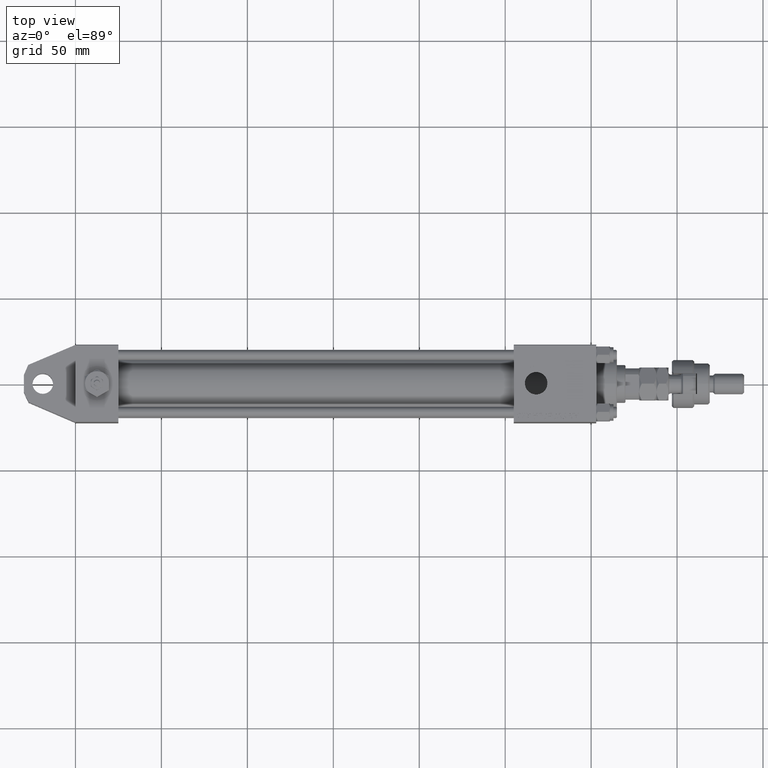
[diagram: clean part render]
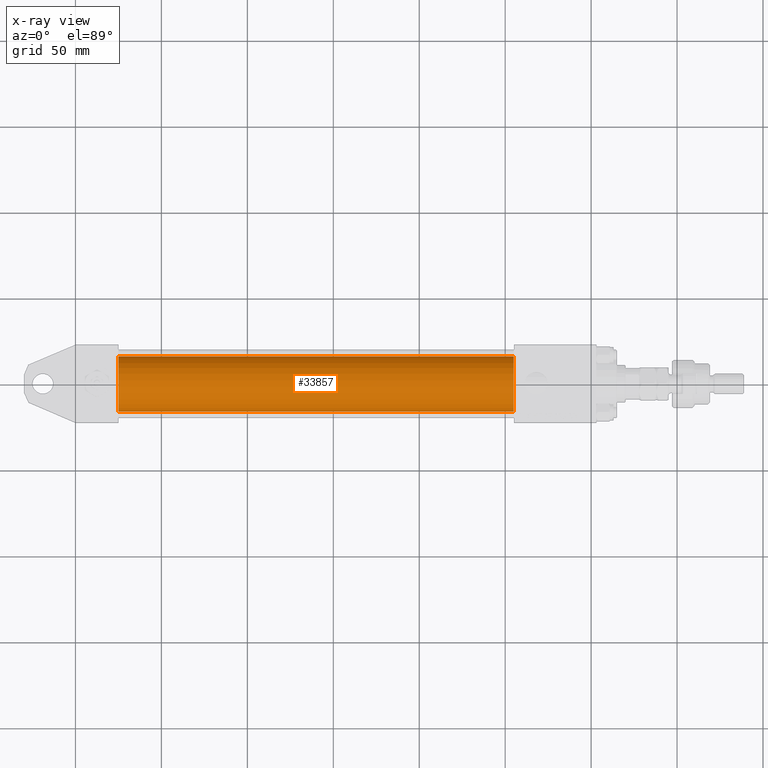
[diagram: x-ray — body ghosted, one internal face saturated and labeled with its STEP entity id]
A machine part, top view, then the same camera in x-ray: the body is ghosted and one INTERNAL B-rep face — a face not visible from any outside direction — is saturated and labeled: STEP entity #33857.
In plain terms, the highlighted cylindrical surface (edge-blend (fillet) strip) has radius 16 mm, axis along (-1, -0, 0).
Its self-contained STEP definition (entity closure, byte-faithful):
#2600 = CARTESIAN_POINT ( 'NONE',  ( 255.0000000000000000, -3.469446951953614189E-15, 16.00000000000000000 ) ) ;
#3638 = CARTESIAN_POINT ( 'NONE',  ( 25.00000000000000000, -3.469446951953614189E-15, 0.000000000000000000 ) ) ;
#5121 = CARTESIAN_POINT ( 'NONE',  ( 255.0000000000000000, -3.469446951953614189E-15, 0.000000000000000000 ) ) ;
#5684 = VERTEX_POINT ( 'NONE', #23177 ) ;
#5744 = VECTOR ( 'NONE', #32026, 1000.000000000000000 ) ;
#10834 = EDGE_CURVE ( 'NONE', #5684, #45684, #15193, .T. ) ;
#11106 = AXIS2_PLACEMENT_3D ( 'NONE', #34223, #42751, #47692 ) ;
#11721 = VERTEX_POINT ( 'NONE', #22994 ) ;
#11765 = EDGE_CURVE ( 'NONE', #22931, #11721, #45053, .T. ) ;
#14925 = CARTESIAN_POINT ( 'NONE',  ( 255.0000000000000000, -1.510012073317849255E-15, -16.00000000000000000 ) ) ;
#15193 = LINE ( 'NONE', #14925, #5744 ) ;
#16720 = ORIENTED_EDGE ( 'NONE', *, *, #53140, .F. ) ;
#20409 = CARTESIAN_POINT ( 'NONE',  ( 25.00000000000000000, -1.510012073317849255E-15, -16.00000000000000000 ) ) ;
#20563 = CIRCLE ( 'NONE', #35408, 16.00000000000000000 ) ;
#20793 = EDGE_LOOP ( 'NONE', ( #27630, #37013, #16720, #37546 ) ) ;
#22931 = VERTEX_POINT ( 'NONE', #52836 ) ;
#22994 = CARTESIAN_POINT ( 'NONE',  ( 25.00000000000000000, -3.469446951953614189E-15, 16.00000000000000000 ) ) ;
#23005 = DIRECTION ( 'NONE',  ( 1.000000000000000000, 0.000000000000000000, 0.000000000000000000 ) ) ;
#23177 = CARTESIAN_POINT ( 'NONE',  ( 255.0000000000000000, -1.510012073317849255E-15, -16.00000000000000000 ) ) ;
#27630 = ORIENTED_EDGE ( 'NONE', *, *, #51156, .T. ) ;
#30625 = CYLINDRICAL_SURFACE ( 'NONE', #11106, 16.00000000000000000 ) ;
#32026 = DIRECTION ( 'NONE',  ( -1.000000000000000000, -0.000000000000000000, -0.000000000000000000 ) ) ;
#32668 = DIRECTION ( 'NONE',  ( -1.000000000000000000, -0.000000000000000000, -0.000000000000000000 ) ) ;
#33857 = ADVANCED_FACE ( 'NONE', ( #43025 ), #30625, .F. ) ;
#34223 = CARTESIAN_POINT ( 'NONE',  ( 255.0000000000000000, -3.469446951953614189E-15, 0.000000000000000000 ) ) ;
#35408 = AXIS2_PLACEMENT_3D ( 'NONE', #3638, #38104, #41434 ) ;
#37013 = ORIENTED_EDGE ( 'NONE', *, *, #10834, .T. ) ;
#37546 = ORIENTED_EDGE ( 'NONE', *, *, #11765, .F. ) ;
#38104 = DIRECTION ( 'NONE',  ( 1.000000000000000000, 0.000000000000000000, 0.000000000000000000 ) ) ;
#41434 = DIRECTION ( 'NONE',  ( 0.000000000000000000, 0.000000000000000000, -1.000000000000000000 ) ) ;
#42751 = DIRECTION ( 'NONE',  ( -1.000000000000000000, -0.000000000000000000, -0.000000000000000000 ) ) ;
#43025 = FACE_OUTER_BOUND ( 'NONE', #20793, .T. ) ;
#45053 = LINE ( 'NONE', #2600, #49790 ) ;
#45684 = VERTEX_POINT ( 'NONE', #20409 ) ;
#47692 = DIRECTION ( 'NONE',  ( 0.000000000000000000, 0.000000000000000000, 1.000000000000000000 ) ) ;
#49790 = VECTOR ( 'NONE', #32668, 1000.000000000000000 ) ;
#51156 = EDGE_CURVE ( 'NONE', #22931, #5684, #52230, .T. ) ;
#51691 = DIRECTION ( 'NONE',  ( 0.000000000000000000, 0.000000000000000000, -1.000000000000000000 ) ) ;
#52230 = CIRCLE ( 'NONE', #54004, 16.00000000000000000 ) ;
#52836 = CARTESIAN_POINT ( 'NONE',  ( 255.0000000000000000, -3.469446951953614189E-15, 16.00000000000000000 ) ) ;
#53140 = EDGE_CURVE ( 'NONE', #11721, #45684, #20563, .T. ) ;
#54004 = AXIS2_PLACEMENT_3D ( 'NONE', #5121, #23005, #51691 ) ;